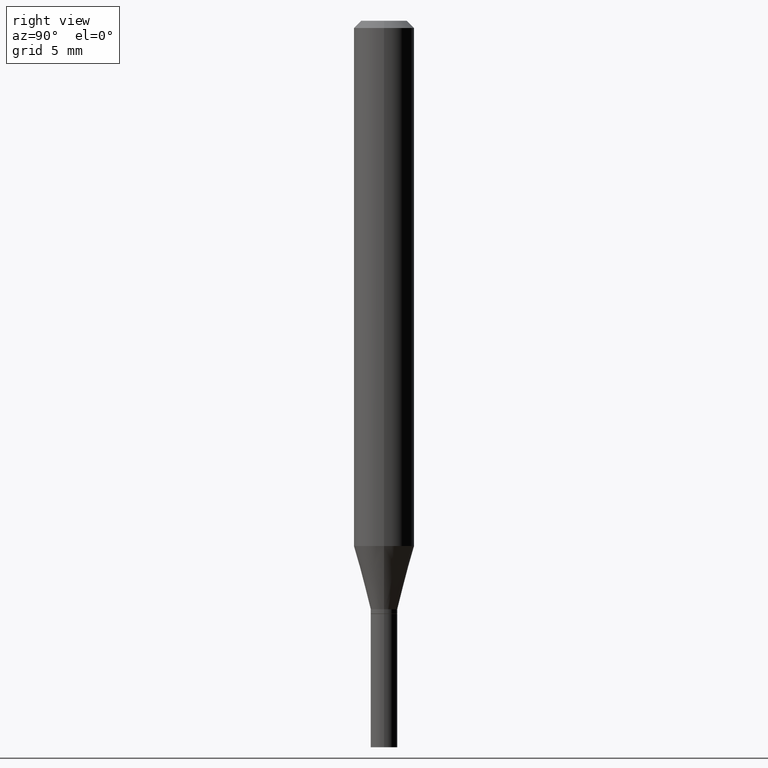
[diagram: clean part render]
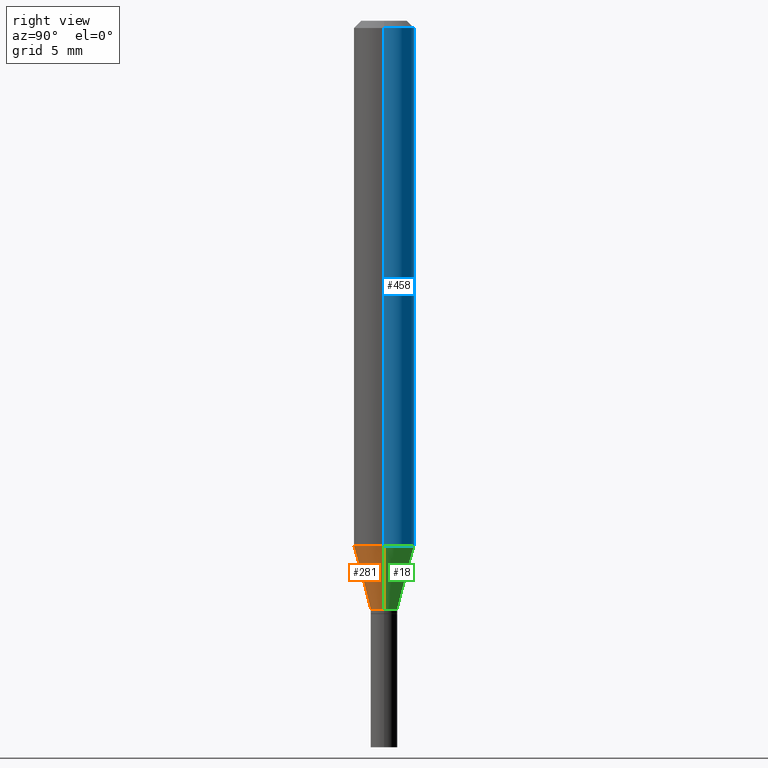
[diagram: same view with three faces highlighted in distinct colors, each labeled with its STEP entity id]
A machine part, right view with three faces highlighted in distinct colors.
Their STEP definitions:

[orange] entity #281 — the highlighted conical surface has half-angle 15 deg.
#9 = VERTEX_POINT ( 'NONE', #379 ) ;
#52 = EDGE_CURVE ( 'NONE', #239, #113, #242, .T. ) ;
#68 = CARTESIAN_POINT ( 'NONE',  ( 0.06250000000000000000, -4.222521492791372833E-15, -1.084378221735089909 ) ) ;
#97 = VERTEX_POINT ( 'NONE', #108 ) ;
#108 = CARTESIAN_POINT ( 'NONE',  ( -0.02750000000000006953, -3.694373844973156064E-15, -1.215000000000000080 ) ) ;
#113 = VERTEX_POINT ( 'NONE', #68 ) ;
#116 = CARTESIAN_POINT ( 'NONE',  ( -0.06250000000000000000, -3.341997115585918942E-15, -1.084378221735089909 ) ) ;
#127 = DIRECTION ( 'NONE',  ( 0.2588190451025214611, 1.565188264969620982E-15, 0.9659258262890679791 ) ) ;
#131 = CARTESIAN_POINT ( 'NONE',  ( 0.02750000000000006953, -4.434181300330794981E-15, -1.215000000000000080 ) ) ;
#134 = ORIENTED_EDGE ( 'NONE', *, *, #287, .T. ) ;
#153 = VECTOR ( 'NONE', #127, 39.37007874015748143 ) ;
#161 = CONICAL_SURFACE ( 'NONE', #292, 0.02750000000000006953, 0.2617993877991501850 ) ;
#177 = CARTESIAN_POINT ( 'NONE',  ( 2.971244599514940898E-29, -4.242149826694421699E-15, -1.215000000000000080 ) ) ;
#205 = LINE ( 'NONE', #131, #153 ) ;
#216 = CIRCLE ( 'NONE', #263, 0.02750000000000006953 ) ;
#239 = VERTEX_POINT ( 'NONE', #116 ) ;
#242 = CIRCLE ( 'NONE', #438, 0.06250000000000000000 ) ;
#247 = ORIENTED_EDGE ( 'NONE', *, *, #372, .F. ) ;
#253 = LINE ( 'NONE', #390, #420 ) ;
#263 = AXIS2_PLACEMENT_3D ( 'NONE', #423, #459, #322 ) ;
#281 = ADVANCED_FACE ( 'NONE', ( #443 ), #161, .T. ) ;
#286 = DIRECTION ( 'NONE',  ( -2.445468806185136597E-29, 3.491481338843145583E-15, 1.000000000000000000 ) ) ;
#287 = EDGE_CURVE ( 'NONE', #9, #113, #205, .T. ) ;
#291 = CARTESIAN_POINT ( 'NONE',  ( 2.651813115359671942E-29, -3.786086325435981164E-15, -1.084378221735089909 ) ) ;
#292 = AXIS2_PLACEMENT_3D ( 'NONE', #177, #456, #378 ) ;
#295 = ORIENTED_EDGE ( 'NONE', *, *, #336, .T. ) ;
#304 = ORIENTED_EDGE ( 'NONE', *, *, #52, .F. ) ;
#322 = DIRECTION ( 'NONE',  ( 1.000000000000000000, -6.982962677686280121E-15, 0.000000000000000000 ) ) ;
#336 = EDGE_CURVE ( 'NONE', #97, #9, #216, .T. ) ;
#353 = DIRECTION ( 'NONE',  ( -0.2588190451025214611, 5.211531920934550253E-15, 0.9659258262890679791 ) ) ;
#372 = EDGE_CURVE ( 'NONE', #97, #239, #253, .T. ) ;
#378 = DIRECTION ( 'NONE',  ( 1.000000000000000000, -6.982962677686280121E-15, 0.000000000000000000 ) ) ;
#379 = CARTESIAN_POINT ( 'NONE',  ( 0.02750000000000006953, -4.434181300330794981E-15, -1.215000000000000080 ) ) ;
#390 = CARTESIAN_POINT ( 'NONE',  ( -0.02750000000000006953, -4.046750574360394369E-15, -1.215000000000000080 ) ) ;
#418 = EDGE_LOOP ( 'NONE', ( #247, #295, #134, #304 ) ) ;
#420 = VECTOR ( 'NONE', #353, 39.37007874015748143 ) ;
#423 = CARTESIAN_POINT ( 'NONE',  ( 2.971244599514940898E-29, -4.242149826694421699E-15, -1.215000000000000080 ) ) ;
#428 = DIRECTION ( 'NONE',  ( 1.000000000000000000, -6.982962677686262766E-15, 0.000000000000000000 ) ) ;
#438 = AXIS2_PLACEMENT_3D ( 'NONE', #291, #286, #428 ) ;
#443 = FACE_OUTER_BOUND ( 'NONE', #418, .T. ) ;
#456 = DIRECTION ( 'NONE',  ( -2.445468806185136597E-29, 3.491481338843145583E-15, 1.000000000000000000 ) ) ;
#459 = DIRECTION ( 'NONE',  ( -2.445468806185136597E-29, 3.491481338843145583E-15, 1.000000000000000000 ) ) ;

[blue] entity #458 — the highlighted cylindrical surface (edge-blend (fillet) strip) has radius 1.5875 mm, axis along (-0, 0, 1).
#1 = DIRECTION ( 'NONE',  ( -2.445468806185136597E-29, 3.491481338843145583E-15, 1.000000000000000000 ) ) ;
#8 = AXIS2_PLACEMENT_3D ( 'NONE', #44, #403, #392 ) ;
#22 = ORIENTED_EDGE ( 'NONE', *, *, #272, .F. ) ;
#33 = DIRECTION ( 'NONE',  ( 1.000000000000000000, -6.982962677686262766E-15, 0.000000000000000000 ) ) ;
#44 = CARTESIAN_POINT ( 'NONE',  ( 0.000000000000000000, 0.000000000000000000, 0.000000000000000000 ) ) ;
#58 = ORIENTED_EDGE ( 'NONE', *, *, #121, .F. ) ;
#64 = CARTESIAN_POINT ( 'NONE',  ( -0.06250000000000000000, -1.475140062909251703E-15, -0.01499999999999999944 ) ) ;
#68 = CARTESIAN_POINT ( 'NONE',  ( 0.06250000000000000000, -4.222521492791372833E-15, -1.084378221735089909 ) ) ;
#74 = VERTEX_POINT ( 'NONE', #64 ) ;
#105 = CIRCLE ( 'NONE', #314, 0.06250000000000000000 ) ;
#113 = VERTEX_POINT ( 'NONE', #68 ) ;
#116 = CARTESIAN_POINT ( 'NONE',  ( -0.06250000000000000000, -3.341997115585918942E-15, -1.084378221735089909 ) ) ;
#121 = EDGE_CURVE ( 'NONE', #306, #74, #274, .T. ) ;
#122 = CYLINDRICAL_SURFACE ( 'NONE', #8, 0.06250000000000000000 ) ;
#158 = EDGE_CURVE ( 'NONE', #113, #239, #105, .T. ) ;
#165 = DIRECTION ( 'NONE',  ( -2.445468806185136877E-29, 3.491481338843145188E-15, 1.000000000000000000 ) ) ;
#175 = EDGE_LOOP ( 'NONE', ( #302, #343, #58, #22 ) ) ;
#218 = EDGE_CURVE ( 'NONE', #239, #74, #397, .T. ) ;
#239 = VERTEX_POINT ( 'NONE', #116 ) ;
#261 = FACE_OUTER_BOUND ( 'NONE', #175, .T. ) ;
#272 = EDGE_CURVE ( 'NONE', #113, #306, #327, .T. ) ;
#274 = CIRCLE ( 'NONE', #300, 0.06250000000000000000 ) ;
#277 = VECTOR ( 'NONE', #165, 39.37007874015748143 ) ;
#300 = AXIS2_PLACEMENT_3D ( 'NONE', #356, #389, #361 ) ;
#302 = ORIENTED_EDGE ( 'NONE', *, *, #158, .T. ) ;
#306 = VERTEX_POINT ( 'NONE', #448 ) ;
#314 = AXIS2_PLACEMENT_3D ( 'NONE', #323, #1, #33 ) ;
#323 = CARTESIAN_POINT ( 'NONE',  ( 2.651813115359671942E-29, -3.786086325435981164E-15, -1.084378221735089909 ) ) ;
#327 = LINE ( 'NONE', #346, #277 ) ;
#343 = ORIENTED_EDGE ( 'NONE', *, *, #218, .T. ) ;
#346 = CARTESIAN_POINT ( 'NONE',  ( 0.06250000000000000000, -4.364351673553916694E-16, 3.047610484872459871E-30 ) ) ;
#356 = CARTESIAN_POINT ( 'NONE',  ( 3.668203209277705088E-31, -5.237222008264718399E-17, -0.01499999999999999944 ) ) ;
#361 = DIRECTION ( 'NONE',  ( 1.000000000000000000, -6.982962677686266711E-15, 0.000000000000000000 ) ) ;
#389 = DIRECTION ( 'NONE',  ( -2.445468806185136597E-29, 3.491481338843145583E-15, 1.000000000000000000 ) ) ;
#392 = DIRECTION ( 'NONE',  ( 1.000000000000000000, -6.982962677686266711E-15, 4.876176775795935793E-29 ) ) ;
#397 = LINE ( 'NONE', #436, #450 ) ;
#400 = DIRECTION ( 'NONE',  ( -2.445468806185136877E-29, 3.491481338843145188E-15, 1.000000000000000000 ) ) ;
#403 = DIRECTION ( 'NONE',  ( -2.445468806185136597E-29, 3.491481338843145583E-15, 1.000000000000000000 ) ) ;
#436 = CARTESIAN_POINT ( 'NONE',  ( -0.06250000000000000000, 4.440892098500626162E-16, -3.074334431409316114E-30 ) ) ;
#448 = CARTESIAN_POINT ( 'NONE',  ( 0.06250000000000000000, -4.888073874380388472E-16, -0.01499999999999999944 ) ) ;
#450 = VECTOR ( 'NONE', #400, 39.37007874015748143 ) ;
#458 = ADVANCED_FACE ( 'NONE', ( #261 ), #122, .T. ) ;

[green] entity #18 — the highlighted conical surface has half-angle 15 deg.
#1 = DIRECTION ( 'NONE',  ( -2.445468806185136597E-29, 3.491481338843145583E-15, 1.000000000000000000 ) ) ;
#9 = VERTEX_POINT ( 'NONE', #379 ) ;
#18 = ADVANCED_FACE ( 'NONE', ( #60 ), #370, .T. ) ;
#33 = DIRECTION ( 'NONE',  ( 1.000000000000000000, -6.982962677686262766E-15, 0.000000000000000000 ) ) ;
#60 = FACE_OUTER_BOUND ( 'NONE', #220, .T. ) ;
#68 = CARTESIAN_POINT ( 'NONE',  ( 0.06250000000000000000, -4.222521492791372833E-15, -1.084378221735089909 ) ) ;
#70 = DIRECTION ( 'NONE',  ( 1.000000000000000000, -6.982962677686280121E-15, 0.000000000000000000 ) ) ;
#87 = CARTESIAN_POINT ( 'NONE',  ( 2.971244599514940898E-29, -4.242149826694421699E-15, -1.215000000000000080 ) ) ;
#97 = VERTEX_POINT ( 'NONE', #108 ) ;
#105 = CIRCLE ( 'NONE', #314, 0.06250000000000000000 ) ;
#108 = CARTESIAN_POINT ( 'NONE',  ( -0.02750000000000006953, -3.694373844973156064E-15, -1.215000000000000080 ) ) ;
#113 = VERTEX_POINT ( 'NONE', #68 ) ;
#116 = CARTESIAN_POINT ( 'NONE',  ( -0.06250000000000000000, -3.341997115585918942E-15, -1.084378221735089909 ) ) ;
#127 = DIRECTION ( 'NONE',  ( 0.2588190451025214611, 1.565188264969620982E-15, 0.9659258262890679791 ) ) ;
#131 = CARTESIAN_POINT ( 'NONE',  ( 0.02750000000000006953, -4.434181300330794981E-15, -1.215000000000000080 ) ) ;
#132 = ORIENTED_EDGE ( 'NONE', *, *, #158, .F. ) ;
#153 = VECTOR ( 'NONE', #127, 39.37007874015748143 ) ;
#158 = EDGE_CURVE ( 'NONE', #113, #239, #105, .T. ) ;
#205 = LINE ( 'NONE', #131, #153 ) ;
#212 = CARTESIAN_POINT ( 'NONE',  ( 2.971244599514940898E-29, -4.242149826694421699E-15, -1.215000000000000080 ) ) ;
#220 = EDGE_LOOP ( 'NONE', ( #268, #451, #132, #321 ) ) ;
#236 = DIRECTION ( 'NONE',  ( 1.000000000000000000, -6.982962677686280121E-15, 0.000000000000000000 ) ) ;
#239 = VERTEX_POINT ( 'NONE', #116 ) ;
#245 = CIRCLE ( 'NONE', #354, 0.02750000000000006953 ) ;
#253 = LINE ( 'NONE', #390, #420 ) ;
#268 = ORIENTED_EDGE ( 'NONE', *, *, #307, .T. ) ;
#287 = EDGE_CURVE ( 'NONE', #9, #113, #205, .T. ) ;
#307 = EDGE_CURVE ( 'NONE', #9, #97, #245, .T. ) ;
#314 = AXIS2_PLACEMENT_3D ( 'NONE', #323, #1, #33 ) ;
#321 = ORIENTED_EDGE ( 'NONE', *, *, #287, .F. ) ;
#323 = CARTESIAN_POINT ( 'NONE',  ( 2.651813115359671942E-29, -3.786086325435981164E-15, -1.084378221735089909 ) ) ;
#350 = DIRECTION ( 'NONE',  ( -2.445468806185136597E-29, 3.491481338843145583E-15, 1.000000000000000000 ) ) ;
#352 = DIRECTION ( 'NONE',  ( -2.445468806185136597E-29, 3.491481338843145583E-15, 1.000000000000000000 ) ) ;
#353 = DIRECTION ( 'NONE',  ( -0.2588190451025214611, 5.211531920934550253E-15, 0.9659258262890679791 ) ) ;
#354 = AXIS2_PLACEMENT_3D ( 'NONE', #87, #350, #236 ) ;
#370 = CONICAL_SURFACE ( 'NONE', #460, 0.02750000000000006953, 0.2617993877991501850 ) ;
#372 = EDGE_CURVE ( 'NONE', #97, #239, #253, .T. ) ;
#379 = CARTESIAN_POINT ( 'NONE',  ( 0.02750000000000006953, -4.434181300330794981E-15, -1.215000000000000080 ) ) ;
#390 = CARTESIAN_POINT ( 'NONE',  ( -0.02750000000000006953, -4.046750574360394369E-15, -1.215000000000000080 ) ) ;
#420 = VECTOR ( 'NONE', #353, 39.37007874015748143 ) ;
#451 = ORIENTED_EDGE ( 'NONE', *, *, #372, .T. ) ;
#460 = AXIS2_PLACEMENT_3D ( 'NONE', #212, #352, #70 ) ;